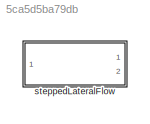
MODEL slx_5ca5d5ba79db
KIND library
CONFIG AbsTol = auto
CONFIG EnableMultiTasking = off
CONFIG FixedStep = auto
CONFIG MaxStep = auto
CONFIG MinStep = auto
CONFIG RelTol = 1e-3
CONFIG SampleTimeConstraint = Unconstrained
CONFIG SolverName = VariableStepAuto
CONFIG StartTime = 0.0
CONFIG StopTime = 10.0
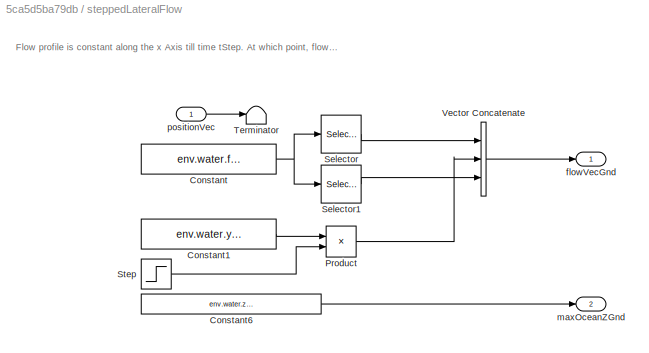
BLOCK [SubSystem] steppedLateralFlow
  Ports = [1, 2]
  RequestExecContextInheritance = off
BLOCK [Constant] steppedLateralFlow/Constant
  Value = env.water.flowVec.Value
BLOCK [Constant] steppedLateralFlow/Constant1
  Value = env.water.yFlow.Value
BLOCK [Constant] steppedLateralFlow/Constant6
  Value = env.water.zGridPoints.Value(end)
BLOCK [Product] steppedLateralFlow/Product
  Ports = [2, 1]
BLOCK [Selector] steppedLateralFlow/Selector
  IndexOptions = Index vector (dialog)
  Indices = 1
  InputPortWidth = 3
  OutputSizes = 1
  Ports = [1, 1]
BLOCK [Selector] steppedLateralFlow/Selector1
  IndexOptions = Index vector (dialog)
  Indices = 3
  InputPortWidth = 3
  OutputSizes = 1
  Ports = [1, 1]
BLOCK [Step] steppedLateralFlow/Step
  SampleTime = 0
  Time = env.water.tStep.Value
BLOCK [Terminator] steppedLateralFlow/Terminator
BLOCK [Concatenate] steppedLateralFlow/Vector Concatenate
  NumInputs = 3
  Ports = [3, 1]
BLOCK [Outport] steppedLateralFlow/flowVecGnd
  VectorParamsAs1DForOutWhenUnconnected = off
BLOCK [Outport] steppedLateralFlow/maxOceanZGnd
  Port = 2
  VectorParamsAs1DForOutWhenUnconnected = off
BLOCK [Inport] steppedLateralFlow/positionVec
ANNOTATION steppedLateralFlow: Flow profile is constant along the x Axis till time tStep. At which point, flow in y direction steps up to yFlow value
LINE steppedLateralFlow/Constant1:1 -> steppedLateralFlow/Product:1
LINE steppedLateralFlow/Constant6:1 -> steppedLateralFlow/maxOceanZGnd:1
NET steppedLateralFlow/Constant:1 -> steppedLateralFlow/Selector1:1, steppedLateralFlow/Selector:1
LINE steppedLateralFlow/Product:1 -> steppedLateralFlow/Vector Concatenate:2
LINE steppedLateralFlow/Selector1:1 -> steppedLateralFlow/Vector Concatenate:3
LINE steppedLateralFlow/Selector:1 -> steppedLateralFlow/Vector Concatenate:1
LINE steppedLateralFlow/Step:1 -> steppedLateralFlow/Product:2
LINE steppedLateralFlow/Vector Concatenate:1 -> steppedLateralFlow/flowVecGnd:1
LINE steppedLateralFlow/positionVec:1 -> steppedLateralFlow/Terminator:1
note: NET lines group one-source signal fan-out (src -> all destinations, sorted); 1:1 wires keep LINE
